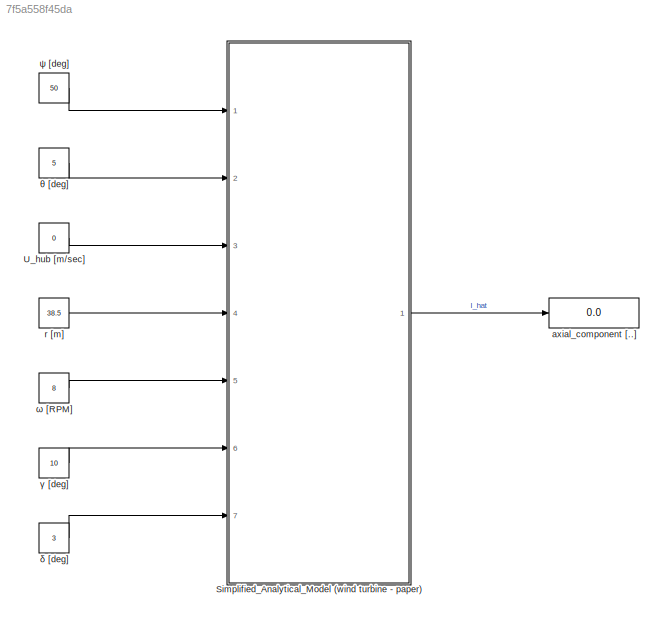
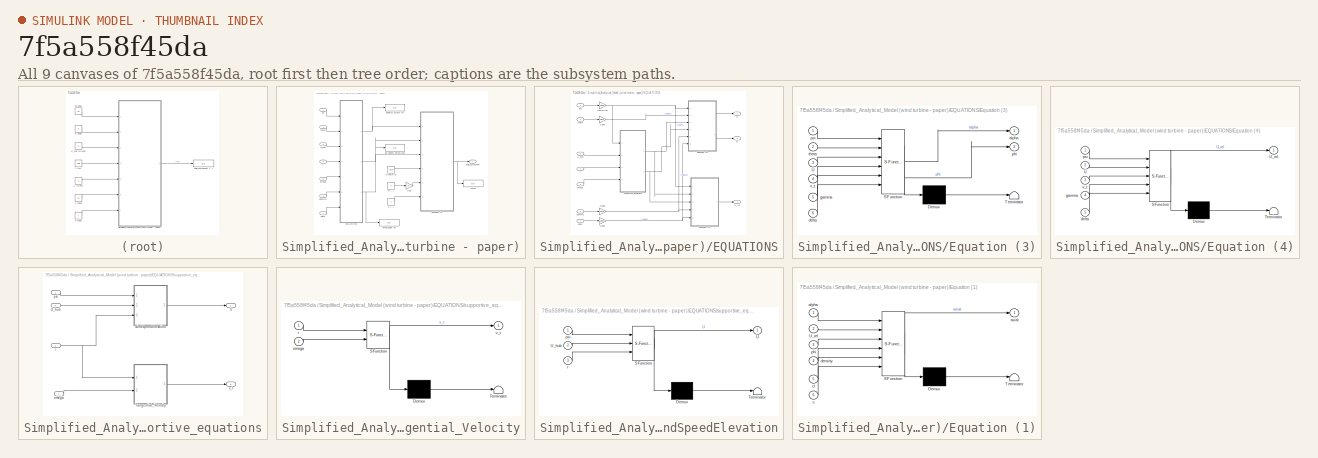
[diagram: thumbnail index - all 9 canvases of the model, root first then tree order]
MODEL slx_7f5a558f45da
KIND model
CONFIG AbsTol = auto
CONFIG EnableMultiTasking = off
CONFIG FixedStep = auto
CONFIG MaxStep = auto
CONFIG MinStep = auto
CONFIG RelTol = 1e-3
CONFIG SampleTimeConstraint = Unconstrained
CONFIG SolverName = VariableStepAuto
CONFIG StartTime = 0.0
CONFIG StopTime = 10.0
BLOCK [SubSystem] Simplified_Analytical_Model (wind turbine - paper)
  Ports = [7, 1]
  RequestExecContextInheritance = off
BLOCK [SubSystem] Simplified_Analytical_Model (wind turbine - paper)/EQUATIONS
  Ports = [7, 3]
  RequestExecContextInheritance = off
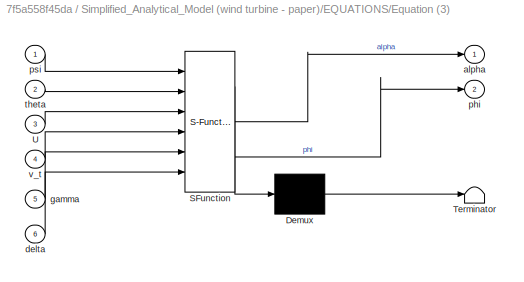
BLOCK [SubSystem] Simplified_Analytical_Model (wind turbine - paper)/EQUATIONS/Equation (3)
  ErrorFcn = Stateflow.Translate.translate
  PermitHierarchicalResolution = ExplicitOnly
  Ports = [6, 2]
  RequestExecContextInheritance = off
  SFBlockType = MATLAB Function
  TreatAsAtomicUnit = on
BLOCK [Demux] Simplified_Analytical_Model (wind turbine - paper)/EQUATIONS/Equation (3)/ Demux 
  Outputs = 1
  Ports = [1, 1]
BLOCK [S-Function] Simplified_Analytical_Model (wind turbine - paper)/EQUATIONS/Equation (3)/ SFunction 
  EnableBusSupport = on
  FunctionName = sf_sfun
  PortCounts = [6 3]
  Ports = [6, 3]
  SFcnIsStateOwnerBlock = off
  SFunctionDeploymentMode = off
  Tag = Stateflow S-Function 4
BLOCK [Terminator] Simplified_Analytical_Model (wind turbine - paper)/EQUATIONS/Equation (3)/ Terminator 
BLOCK [Inport] Simplified_Analytical_Model (wind turbine - paper)/EQUATIONS/Equation (3)/U
  Port = 3
BLOCK [Outport] Simplified_Analytical_Model (wind turbine - paper)/EQUATIONS/Equation (3)/alpha
BLOCK [Inport] Simplified_Analytical_Model (wind turbine - paper)/EQUATIONS/Equation (3)/delta
  Port = 6
BLOCK [Inport] Simplified_Analytical_Model (wind turbine - paper)/EQUATIONS/Equation (3)/gamma
  Port = 5
BLOCK [Outport] Simplified_Analytical_Model (wind turbine - paper)/EQUATIONS/Equation (3)/phi
  Port = 2
BLOCK [Inport] Simplified_Analytical_Model (wind turbine - paper)/EQUATIONS/Equation (3)/psi
BLOCK [Inport] Simplified_Analytical_Model (wind turbine - paper)/EQUATIONS/Equation (3)/theta
  Port = 2
BLOCK [Inport] Simplified_Analytical_Model (wind turbine - paper)/EQUATIONS/Equation (3)/v_t
  Port = 4
BLOCK [SubSystem] Simplified_Analytical_Model (wind turbine - paper)/EQUATIONS/Equation (4)
  ErrorFcn = Stateflow.Translate.translate
  PermitHierarchicalResolution = ExplicitOnly
  Ports = [5, 1]
  RequestExecContextInheritance = off
  SFBlockType = MATLAB Function
  TreatAsAtomicUnit = on
BLOCK [Demux] Simplified_Analytical_Model (wind turbine - paper)/EQUATIONS/Equation (4)/ Demux 
  Outputs = 1
  Ports = [1, 1]
BLOCK [S-Function] Simplified_Analytical_Model (wind turbine - paper)/EQUATIONS/Equation (4)/ SFunction 
  EnableBusSupport = on
  FunctionName = sf_sfun
  PortCounts = [5 2]
  Ports = [5, 2]
  SFcnIsStateOwnerBlock = off
  SFunctionDeploymentMode = off
  Tag = Stateflow S-Function 5
BLOCK [Terminator] Simplified_Analytical_Model (wind turbine - paper)/EQUATIONS/Equation (4)/ Terminator 
BLOCK [Inport] Simplified_Analytical_Model (wind turbine - paper)/EQUATIONS/Equation (4)/U
  Port = 2
BLOCK [Outport] Simplified_Analytical_Model (wind turbine - paper)/EQUATIONS/Equation (4)/U_rel
BLOCK [Inport] Simplified_Analytical_Model (wind turbine - paper)/EQUATIONS/Equation (4)/delta
  Port = 5
BLOCK [Inport] Simplified_Analytical_Model (wind turbine - paper)/EQUATIONS/Equation (4)/gamma
  Port = 4
BLOCK [Inport] Simplified_Analytical_Model (wind turbine - paper)/EQUATIONS/Equation (4)/psi
BLOCK [Inport] Simplified_Analytical_Model (wind turbine - paper)/EQUATIONS/Equation (4)/v_t
  Port = 3
BLOCK [Gain] Simplified_Analytical_Model (wind turbine - paper)/EQUATIONS/Gain2
  Gain = pi/180
BLOCK [Gain] Simplified_Analytical_Model (wind turbine - paper)/EQUATIONS/Gain5
  Gain = pi/180
BLOCK [Gain] Simplified_Analytical_Model (wind turbine - paper)/EQUATIONS/Gain6
  Gain = pi/180
BLOCK [Inport] Simplified_Analytical_Model (wind turbine - paper)/EQUATIONS/U_hub
  Port = 3
BLOCK [Outport] Simplified_Analytical_Model (wind turbine - paper)/EQUATIONS/U_rel
  Port = 2
BLOCK [Gain] Simplified_Analytical_Model (wind turbine - paper)/EQUATIONS/convTOrad
  Gain = pi/180
BLOCK [Inport] Simplified_Analytical_Model (wind turbine - paper)/EQUATIONS/delta
  Port = 7
BLOCK [Inport] Simplified_Analytical_Model (wind turbine - paper)/EQUATIONS/gamma
  Port = 6
BLOCK [Inport] Simplified_Analytical_Model (wind turbine - paper)/EQUATIONS/omega
  Port = 5
BLOCK [Inport] Simplified_Analytical_Model (wind turbine - paper)/EQUATIONS/psi
BLOCK [Inport] Simplified_Analytical_Model (wind turbine - paper)/EQUATIONS/r
  Port = 4
BLOCK [SubSystem] Simplified_Analytical_Model (wind turbine - paper)/EQUATIONS/supportive_equations
  Ports = [4, 2]
  RequestExecContextInheritance = off
BLOCK [SubSystem] Simplified_Analytical_Model (wind turbine - paper)/EQUATIONS/supportive_equations/Tangential_Velocity
  ErrorFcn = Stateflow.Translate.translate
  PermitHierarchicalResolution = ExplicitOnly
  Ports = [2, 1]
  RequestExecContextInheritance = off
  SFBlockType = MATLAB Function
  TreatAsAtomicUnit = on
BLOCK [Demux] Simplified_Analytical_Model (wind turbine - paper)/EQUATIONS/supportive_equations/Tangential_Velocity/ Demux 
  Outputs = 1
  Ports = [1, 1]
BLOCK [S-Function] Simplified_Analytical_Model (wind turbine - paper)/EQUATIONS/supportive_equations/Tangential_Velocity/ SFunction 
  EnableBusSupport = on
  FunctionName = sf_sfun
  PortCounts = [2 2]
  Ports = [2, 2]
  SFcnIsStateOwnerBlock = off
  SFunctionDeploymentMode = off
  Tag = Stateflow S-Function 7
BLOCK [Terminator] Simplified_Analytical_Model (wind turbine - paper)/EQUATIONS/supportive_equations/Tangential_Velocity/ Terminator 
BLOCK [Inport] Simplified_Analytical_Model (wind turbine - paper)/EQUATIONS/supportive_equations/Tangential_Velocity/omega
  Port = 2
BLOCK [Inport] Simplified_Analytical_Model (wind turbine - paper)/EQUATIONS/supportive_equations/Tangential_Velocity/r
BLOCK [Outport] Simplified_Analytical_Model (wind turbine - paper)/EQUATIONS/supportive_equations/Tangential_Velocity/v_t
BLOCK [Outport] Simplified_Analytical_Model (wind turbine - paper)/EQUATIONS/supportive_equations/U
BLOCK [Inport] Simplified_Analytical_Model (wind turbine - paper)/EQUATIONS/supportive_equations/U_hub
  Port = 2
BLOCK [Inport] Simplified_Analytical_Model (wind turbine - paper)/EQUATIONS/supportive_equations/omega
  Port = 4
BLOCK [Inport] Simplified_Analytical_Model (wind turbine - paper)/EQUATIONS/supportive_equations/psi
BLOCK [Inport] Simplified_Analytical_Model (wind turbine - paper)/EQUATIONS/supportive_equations/r
  Port = 3
BLOCK [Outport] Simplified_Analytical_Model (wind turbine - paper)/EQUATIONS/supportive_equations/v_t
  Port = 2
BLOCK [SubSystem] Simplified_Analytical_Model (wind turbine - paper)/EQUATIONS/supportive_equations/windSpeedElevation
  ErrorFcn = Stateflow.Translate.translate
  PermitHierarchicalResolution = ExplicitOnly
  Ports = [3, 1]
  RequestExecContextInheritance = off
  SFBlockType = MATLAB Function
  TreatAsAtomicUnit = on
BLOCK [Demux] Simplified_Analytical_Model (wind turbine - paper)/EQUATIONS/supportive_equations/windSpeedElevation/ Demux 
  Outputs = 1
  Ports = [1, 1]
BLOCK [S-Function] Simplified_Analytical_Model (wind turbine - paper)/EQUATIONS/supportive_equations/windSpeedElevation/ SFunction 
  EnableBusSupport = on
  FunctionName = sf_sfun
  PortCounts = [3 2]
  Ports = [3, 2]
  SFcnIsStateOwnerBlock = off
  SFunctionDeploymentMode = off
  Tag = Stateflow S-Function 6
BLOCK [Terminator] Simplified_Analytical_Model (wind turbine - paper)/EQUATIONS/supportive_equations/windSpeedElevation/ Terminator 
BLOCK [Outport] Simplified_Analytical_Model (wind turbine - paper)/EQUATIONS/supportive_equations/windSpeedElevation/U
BLOCK [Inport] Simplified_Analytical_Model (wind turbine - paper)/EQUATIONS/supportive_equations/windSpeedElevation/U_hub
  Port = 2
BLOCK [Inport] Simplified_Analytical_Model (wind turbine - paper)/EQUATIONS/supportive_equations/windSpeedElevation/psi
BLOCK [Inport] Simplified_Analytical_Model (wind turbine - paper)/EQUATIONS/supportive_equations/windSpeedElevation/r
  Port = 3
BLOCK [Inport] Simplified_Analytical_Model (wind turbine - paper)/EQUATIONS/theta
  Port = 2
BLOCK [Outport] Simplified_Analytical_Model (wind turbine - paper)/EQUATIONS/α
BLOCK [Outport] Simplified_Analytical_Model (wind turbine - paper)/EQUATIONS/φ
  Port = 3
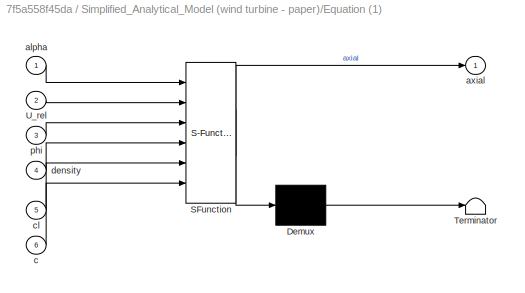
BLOCK [SubSystem] Simplified_Analytical_Model (wind turbine - paper)/Equation (1)
  ErrorFcn = Stateflow.Translate.translate
  PermitHierarchicalResolution = ExplicitOnly
  Ports = [6, 1]
  RequestExecContextInheritance = off
  SFBlockType = MATLAB Function
  TreatAsAtomicUnit = on
BLOCK [Demux] Simplified_Analytical_Model (wind turbine - paper)/Equation (1)/ Demux 
  Outputs = 1
  Ports = [1, 1]
BLOCK [S-Function] Simplified_Analytical_Model (wind turbine - paper)/Equation (1)/ SFunction 
  EnableBusSupport = on
  FunctionName = sf_sfun
  PortCounts = [6 2]
  Ports = [6, 2]
  SFcnIsStateOwnerBlock = off
  SFunctionDeploymentMode = off
  Tag = Stateflow S-Function 2
BLOCK [Terminator] Simplified_Analytical_Model (wind turbine - paper)/Equation (1)/ Terminator 
BLOCK [Inport] Simplified_Analytical_Model (wind turbine - paper)/Equation (1)/U_rel
  Port = 2
BLOCK [Inport] Simplified_Analytical_Model (wind turbine - paper)/Equation (1)/alpha
BLOCK [Outport] Simplified_Analytical_Model (wind turbine - paper)/Equation (1)/axial
BLOCK [Inport] Simplified_Analytical_Model (wind turbine - paper)/Equation (1)/c
  Port = 6
BLOCK [Inport] Simplified_Analytical_Model (wind turbine - paper)/Equation (1)/cl
  Port = 5
BLOCK [Inport] Simplified_Analytical_Model (wind turbine - paper)/Equation (1)/density
  Port = 4
BLOCK [Inport] Simplified_Analytical_Model (wind turbine - paper)/Equation (1)/phi
  Port = 3
BLOCK [Gain] Simplified_Analytical_Model (wind turbine - paper)/Gain
  Gain = pi
BLOCK [Inport] Simplified_Analytical_Model (wind turbine - paper)/U_hub
  Port = 3
BLOCK [Display] Simplified_Analytical_Model (wind turbine - paper)/air_velocity_airfoil (Urel)
  Decimation = 1
  Ports = [1]
BLOCK [Display] Simplified_Analytical_Model (wind turbine - paper)/angle_of_attack (α)
  Decimation = 1
  Ports = [1]
BLOCK [Outport] Simplified_Analytical_Model (wind turbine - paper)/axial_component
BLOCK [Constant] Simplified_Analytical_Model (wind turbine - paper)/c [..]
BLOCK [Constant] Simplified_Analytical_Model (wind turbine - paper)/cl [...]
  Value = 2
BLOCK [Inport] Simplified_Analytical_Model (wind turbine - paper)/delta
  Port = 7
BLOCK [Inport] Simplified_Analytical_Model (wind turbine - paper)/gamma
  Port = 6
BLOCK [Display] Simplified_Analytical_Model (wind turbine - paper)/inflow_angle (φ)
  Decimation = 1
  Ports = [1]
BLOCK [Inport] Simplified_Analytical_Model (wind turbine - paper)/omega
  Port = 5
BLOCK [Display] Simplified_Analytical_Model (wind turbine - paper)/output
  Decimation = 1
  Ports = [1]
BLOCK [Inport] Simplified_Analytical_Model (wind turbine - paper)/psi
BLOCK [Inport] Simplified_Analytical_Model (wind turbine - paper)/r
  Port = 4
BLOCK [Inport] Simplified_Analytical_Model (wind turbine - paper)/theta
  Port = 2
BLOCK [Constant] Simplified_Analytical_Model (wind turbine - paper)/ρ [kg//m^3]
  Value = 1.225
BLOCK [Constant] U_hub [m//sec]
  Value = 0
BLOCK [Display] axial_component [..]
  Decimation = 1
  Ports = [1]
BLOCK [Constant] r [m]
  Value = 38.5
BLOCK [Constant] γ [deg]
  Value = 10
BLOCK [Constant] δ [deg]
  Value = 3
BLOCK [Constant] θ [deg]
  Value = 5
BLOCK [Constant] ψ [deg]
  Value = 50
BLOCK [Constant] ω [RPM]
  Value = 8
LINE Simplified_Analytical_Model (wind turbine - paper)/EQUATIONS/Equation (3):1 -> Simplified_Analytical_Model (wind turbine - paper)/EQUATIONS/α:1
LINE Simplified_Analytical_Model (wind turbine - paper)/EQUATIONS/Equation (3):2 -> Simplified_Analytical_Model (wind turbine - paper)/EQUATIONS/φ:1
LINE Simplified_Analytical_Model (wind turbine - paper)/EQUATIONS/Equation (4):1 -> Simplified_Analytical_Model (wind turbine - paper)/EQUATIONS/U_rel:1
LINE Simplified_Analytical_Model (wind turbine - paper)/EQUATIONS/Gain2:1 -> Simplified_Analytical_Model (wind turbine - paper)/EQUATIONS/Equation (3):2
NET Simplified_Analytical_Model (wind turbine - paper)/EQUATIONS/Gain5:1 -> Simplified_Analytical_Model (wind turbine - paper)/EQUATIONS/Equation (3):5, Simplified_Analytical_Model (wind turbine - paper)/EQUATIONS/Equation (4):4
NET Simplified_Analytical_Model (wind turbine - paper)/EQUATIONS/Gain6:1 -> Simplified_Analytical_Model (wind turbine - paper)/EQUATIONS/Equation (3):6, Simplified_Analytical_Model (wind turbine - paper)/EQUATIONS/Equation (4):5
LINE Simplified_Analytical_Model (wind turbine - paper)/EQUATIONS/U_hub:1 -> Simplified_Analytical_Model (wind turbine - paper)/EQUATIONS/supportive_equations:2
NET Simplified_Analytical_Model (wind turbine - paper)/EQUATIONS/convTOrad:1 -> Simplified_Analytical_Model (wind turbine - paper)/EQUATIONS/Equation (3):1, Simplified_Analytical_Model (wind turbine - paper)/EQUATIONS/Equation (4):1, Simplified_Analytical_Model (wind turbine - paper)/EQUATIONS/supportive_equations:1
LINE Simplified_Analytical_Model (wind turbine - paper)/EQUATIONS/delta:1 -> Simplified_Analytical_Model (wind turbine - paper)/EQUATIONS/Gain6:1
LINE Simplified_Analytical_Model (wind turbine - paper)/EQUATIONS/gamma:1 -> Simplified_Analytical_Model (wind turbine - paper)/EQUATIONS/Gain5:1
LINE Simplified_Analytical_Model (wind turbine - paper)/EQUATIONS/omega:1 -> Simplified_Analytical_Model (wind turbine - paper)/EQUATIONS/supportive_equations:4
LINE Simplified_Analytical_Model (wind turbine - paper)/EQUATIONS/psi:1 -> Simplified_Analytical_Model (wind turbine - paper)/EQUATIONS/convTOrad:1
LINE Simplified_Analytical_Model (wind turbine - paper)/EQUATIONS/r:1 -> Simplified_Analytical_Model (wind turbine - paper)/EQUATIONS/supportive_equations:3
LINE Simplified_Analytical_Model (wind turbine - paper)/EQUATIONS/supportive_equations/Tangential_Velocity:1 -> Simplified_Analytical_Model (wind turbine - paper)/EQUATIONS/supportive_equations/v_t:1
LINE Simplified_Analytical_Model (wind turbine - paper)/EQUATIONS/supportive_equations/U_hub:1 -> Simplified_Analytical_Model (wind turbine - paper)/EQUATIONS/supportive_equations/windSpeedElevation:2
LINE Simplified_Analytical_Model (wind turbine - paper)/EQUATIONS/supportive_equations/omega:1 -> Simplified_Analytical_Model (wind turbine - paper)/EQUATIONS/supportive_equations/Tangential_Velocity:2
LINE Simplified_Analytical_Model (wind turbine - paper)/EQUATIONS/supportive_equations/psi:1 -> Simplified_Analytical_Model (wind turbine - paper)/EQUATIONS/supportive_equations/windSpeedElevation:1
NET Simplified_Analytical_Model (wind turbine - paper)/EQUATIONS/supportive_equations/r:1 -> Simplified_Analytical_Model (wind turbine - paper)/EQUATIONS/supportive_equations/Tangential_Velocity:1, Simplified_Analytical_Model (wind turbine - paper)/EQUATIONS/supportive_equations/windSpeedElevation:3
LINE Simplified_Analytical_Model (wind turbine - paper)/EQUATIONS/supportive_equations/windSpeedElevation:1 -> Simplified_Analytical_Model (wind turbine - paper)/EQUATIONS/supportive_equations/U:1
NET Simplified_Analytical_Model (wind turbine - paper)/EQUATIONS/supportive_equations:1 -> Simplified_Analytical_Model (wind turbine - paper)/EQUATIONS/Equation (3):3, Simplified_Analytical_Model (wind turbine - paper)/EQUATIONS/Equation (4):2
NET Simplified_Analytical_Model (wind turbine - paper)/EQUATIONS/supportive_equations:2 -> Simplified_Analytical_Model (wind turbine - paper)/EQUATIONS/Equation (3):4, Simplified_Analytical_Model (wind turbine - paper)/EQUATIONS/Equation (4):3
LINE Simplified_Analytical_Model (wind turbine - paper)/EQUATIONS/theta:1 -> Simplified_Analytical_Model (wind turbine - paper)/EQUATIONS/Gain2:1
NET Simplified_Analytical_Model (wind turbine - paper)/EQUATIONS:1 -> Simplified_Analytical_Model (wind turbine - paper)/Equation (1):1, Simplified_Analytical_Model (wind turbine - paper)/angle_of_attack (α):1
NET Simplified_Analytical_Model (wind turbine - paper)/EQUATIONS:2 -> Simplified_Analytical_Model (wind turbine - paper)/Equation (1):2, Simplified_Analytical_Model (wind turbine - paper)/air_velocity_airfoil (Urel):1
NET Simplified_Analytical_Model (wind turbine - paper)/EQUATIONS:3 -> Simplified_Analytical_Model (wind turbine - paper)/Equation (1):3, Simplified_Analytical_Model (wind turbine - paper)/inflow_angle (φ):1
NET Simplified_Analytical_Model (wind turbine - paper)/Equation (1):1 -> Simplified_Analytical_Model (wind turbine - paper)/axial_component:1, Simplified_Analytical_Model (wind turbine - paper)/output:1
LINE Simplified_Analytical_Model (wind turbine - paper)/Gain:1 -> Simplified_Analytical_Model (wind turbine - paper)/Equation (1):5
LINE Simplified_Analytical_Model (wind turbine - paper)/U_hub:1 -> Simplified_Analytical_Model (wind turbine - paper)/EQUATIONS:3
LINE Simplified_Analytical_Model (wind turbine - paper)/c [..]:1 -> Simplified_Analytical_Model (wind turbine - paper)/Equation (1):6
LINE Simplified_Analytical_Model (wind turbine - paper)/cl [...]:1 -> Simplified_Analytical_Model (wind turbine - paper)/Gain:1
LINE Simplified_Analytical_Model (wind turbine - paper)/delta:1 -> Simplified_Analytical_Model (wind turbine - paper)/EQUATIONS:7
LINE Simplified_Analytical_Model (wind turbine - paper)/gamma:1 -> Simplified_Analytical_Model (wind turbine - paper)/EQUATIONS:6
LINE Simplified_Analytical_Model (wind turbine - paper)/omega:1 -> Simplified_Analytical_Model (wind turbine - paper)/EQUATIONS:5
LINE Simplified_Analytical_Model (wind turbine - paper)/psi:1 -> Simplified_Analytical_Model (wind turbine - paper)/EQUATIONS:1
LINE Simplified_Analytical_Model (wind turbine - paper)/r:1 -> Simplified_Analytical_Model (wind turbine - paper)/EQUATIONS:4
LINE Simplified_Analytical_Model (wind turbine - paper)/theta:1 -> Simplified_Analytical_Model (wind turbine - paper)/EQUATIONS:2
LINE Simplified_Analytical_Model (wind turbine - paper)/ρ [kg//m^3]:1 -> Simplified_Analytical_Model (wind turbine - paper)/Equation (1):4
LINE Simplified_Analytical_Model (wind turbine - paper):1 -> axial_component [..]:1
LINE U_hub [m//sec]:1 -> Simplified_Analytical_Model (wind turbine - paper):3
LINE r [m]:1 -> Simplified_Analytical_Model (wind turbine - paper):4
LINE γ [deg]:1 -> Simplified_Analytical_Model (wind turbine - paper):6
LINE δ [deg]:1 -> Simplified_Analytical_Model (wind turbine - paper):7
LINE θ [deg]:1 -> Simplified_Analytical_Model (wind turbine - paper):2
LINE ψ [deg]:1 -> Simplified_Analytical_Model (wind turbine - paper):1
LINE ω [RPM]:1 -> Simplified_Analytical_Model (wind turbine - paper):5
note: NET lines group one-source signal fan-out (src -> all destinations, sorted); 1:1 wires keep LINE
CHART Simplified_Analytical_Model
(wind turbine - paper)/Equation (1) states=1 transitions=1
  STATE_LABEL 'eML_blk_kernel()'
  STATE_LABEL 'SCRIPT:\nfunction axial = axialComponent(alpha, U_rel, phi, density, cl, c)\naxial = 0.5*density*U_rel^2*cl*alpha*c*cos(phi); \n\n'
CHART Simplified_Analytical_Model
(wind turbine - paper)/EQUATIONS/Equation (3) states=1 transitions=1
  STATE_LABEL 'eML_blk_kernel()'
  STATE_LABEL 'SCRIPT:\nfunction [alpha, phi] = AngleOFAttack(psi, theta, U, v_t, gamma, delta)\nphi = atan((U*cos(gamma)*cos(delta)) / ((v_t-U)*(cos(gamma)*sin(delta)*sin(psi) + sin(gamma)*cos(psi))));\nalpha = phi - theta;\n\n'
CHART Simplified_Analytical_Model
(wind turbine - paper)/EQUATIONS/Equation (4) states=1 transitions=1
  STATE_LABEL 'eML_blk_kernel()'
  STATE_LABEL 'SCRIPT:\nfunction U_rel = airVelocityAirfoil(psi, U, v_t, gamma, delta)\nU_rel = sqrt((U*cos(gamma)*cos(delta))^2 + ((v_t-U)*(cos(gamma)*sin(delta)*sin(psi)+(sin(gamma)*cos(psi))))^2);\n\n'
CHART Simplified_Analytical_Model
(wind turbine - paper)/EQUATIONS/supportive_equations/windSpeedElevation states=1 transitions=1
  STATE_LABEL 'eML_blk_kernel()'
  STATE_LABEL 'SCRIPT:\nfunction U = windSpeedElevation(psi, U_hub, r)\nU = U_hub + 10; % we need an equation for U that includes psi,r,Uhub \n\n'
CHART Simplified_Analytical_Model
(wind turbine - paper)/EQUATIONS/supportive_equations/Tangential_Velocity states=1 transitions=1
  STATE_LABEL 'eML_blk_kernel()'
  STATE_LABEL 'SCRIPT:\nfunction v_t = tangentialVelocity(r, omega)\nv_t = omega * r * (2*pi/60);\n\n'
CHART  states=0 transitions=0
CHART  states=0 transitions=0
CHART  states=0 transitions=0
CHART  states=0 transitions=0
CHART  states=0 transitions=0
